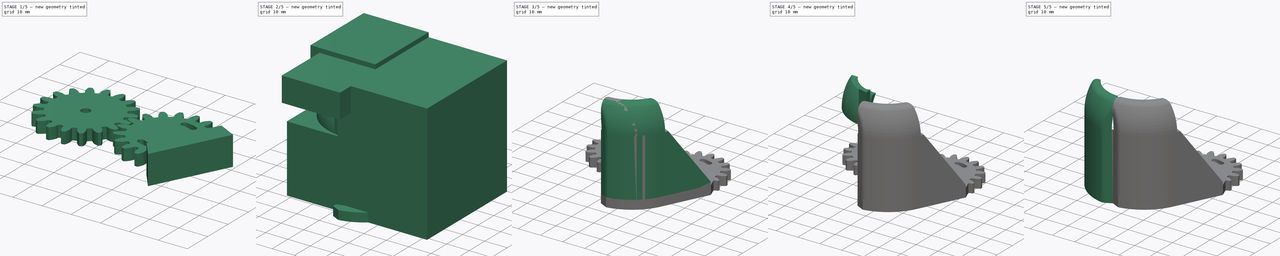
[diagram: build sequence overview — one tinted view per stage of 5, left to right]
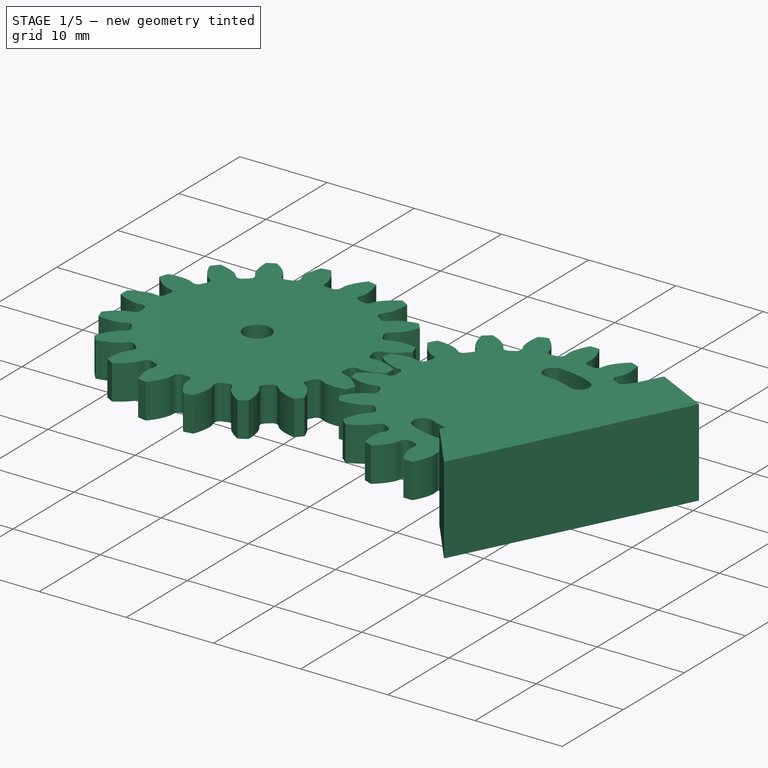
[diagram: stage 1 of 5 — iso view after this stage's code; geometry added in this stage tinted green]
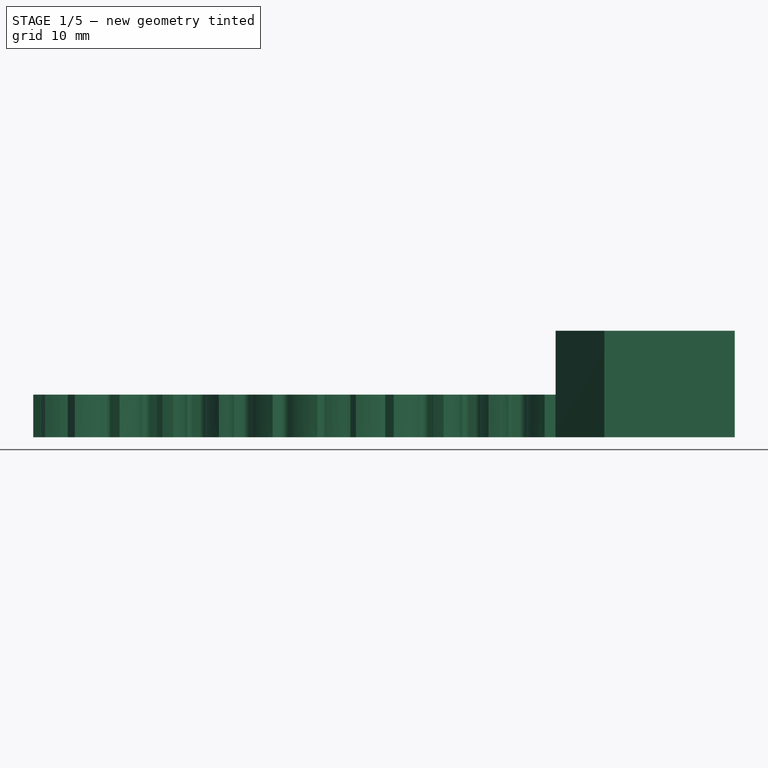
[diagram: stage 1 of 5 — front view after this stage's code; geometry added in this stage tinted green]
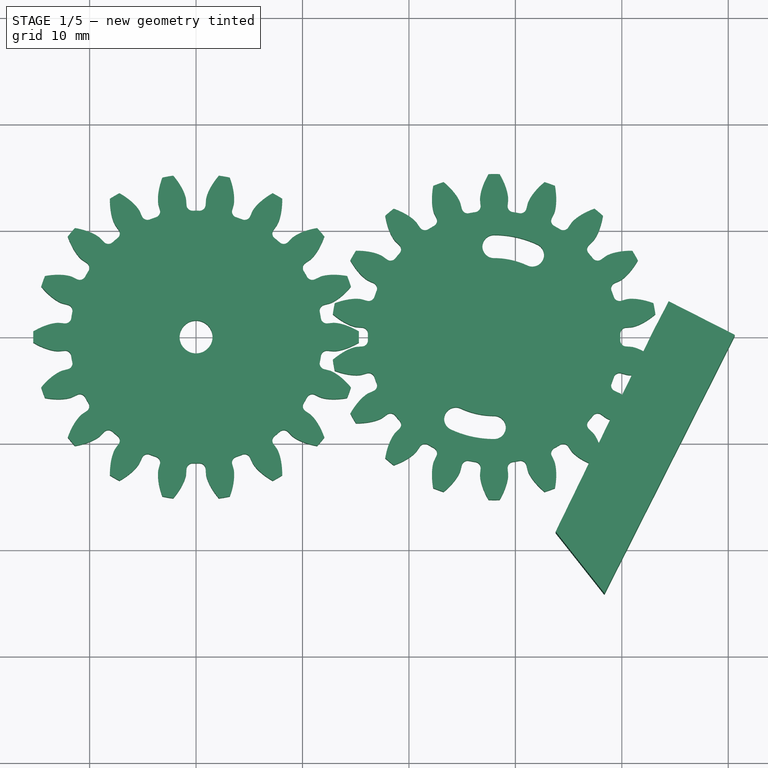
[diagram: stage 1 of 5 — top view after this stage's code; geometry added in this stage tinted green]
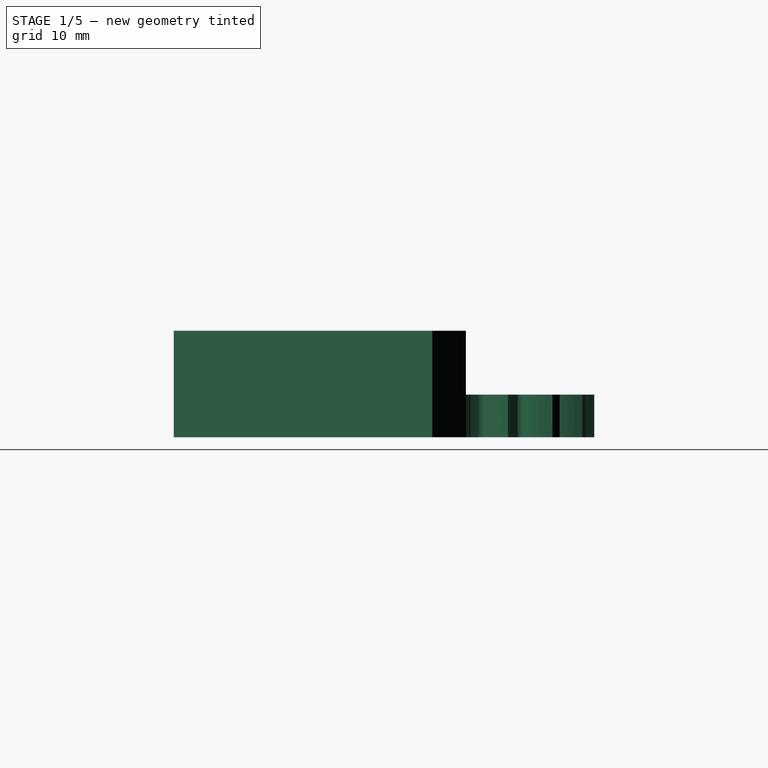
[diagram: stage 1 of 5 — right view after this stage's code; geometry added in this stage tinted green]
FCSTD DOCUMENT  (FreeCAD 0.16R6712 (Git))
Label: pinza_v2
License: All rights reserved
LicenseURL: http://en.wikipedia.org/wiki/All_rights_reserved
objects: Part::Cut×20, PartDesign::Pad×12, Sketcher::SketchObject×11, Part::Box×8, Part::Fillet×8, Part::Part2DObjectPython×4, Part::Sphere×4, Part::MultiFuse×4, Part::Cylinder×4, Part::Mirroring×3, PartDesign::Pocket×2
note: 94 computed .brp shape members not serialized (recipe doc carries the construction recipe); baked Part::Feature solids carry a one-line shape summary decoded from their .brp

FEATURE [PartDesign::Pad] Pad001
  Length = 4
  Length2 = 100
  Placement = pos=(28,0,0) rot=(0,0,1;0.174533rad)
  Sketch = -> InvoluteGear001
  Type = 0
FEATURE [Sketcher::SketchObject] Sketch005
  sketch-geometry (8):
    g0: GeomPoint [constr] X=14 Y=-28.775 Z=0
    g1: LineSegment [constr] StartX=14 StartY=-28.775 StartZ=0 EndX=14 EndY=-8.77499 EndZ=0
    g2: LineSegment [constr] StartX=0 StartY=0 StartZ=0 EndX=14 EndY=-28.775 EndZ=0
    g3: LineSegment StartX=-14.9703 StartY=0.483587 StartZ=0 EndX=-5.7828 EndY=-18.4 EndZ=0
    g4: LineSegment StartX=-14.9703 StartY=0.483587 StartZ=0 EndX=-16.4075 EndY=3.24482 EndZ=0
    g5: LineSegment StartX=-16.4075 StartY=3.24482 StartZ=0 EndX=-22.6139 EndY=0.087143 EndZ=0
    g6: LineSegment StartX=-22.6139 StartY=0.087143 StartZ=0 EndX=-10.3643 EndY=-24.1943 EndZ=0
    g7: LineSegment StartX=-10.3643 StartY=-24.1943 StartZ=0 EndX=-5.7828 EndY=-18.4 EndZ=0
  constraints (9):
    c: Coincident(g1,g0)
    c: Vertical(g1)
    c: Coincident(g2,g0)
    c: Coincident(g2,g-1)
    c: Distance(g2) = 32
    c: Coincident(g5,g4)
    c: Coincident(g7,g6)
    c: Coincident(g6,g5)
    c: Coincident(g3,g7)
FEATURE [PartDesign::Pad] Pad005
  Length = 10
  Length2 = 100
  Sketch = -> Sketch005
  Type = 0
FEATURE [Part::Mirroring] Part__Mirroring001  label="Pad005 (Mirror #2)"
  Base = (18,0,0)
  Normal = (1,0,0)
  Placement = pos=(-8,0,0) rot=(0,0,1;0rad)
  Source = -> Pad005
FEATURE [PartDesign::Pad] Pad002
  Length = 5
  Length2 = 100
  Placement = pos=(28,0,0) rot=(0,0,1;0rad)
  Sketch = -> Sketch001
  Type = 0
FEATURE [Part::Cut] Cut
  Base = -> Pad001
  Tool = -> Pad002
FEATURE [Part::Part2DObjectPython] InvoluteGear002  # Draft 2D object (typed FeaturePython)
  ExternalGear = true
  HighPrecision = true
  Modules = 1.53
  NumberOfTeeth = 18
  PressureAngle = 20
FEATURE [PartDesign::Pad] Pad009
  Length = 4
  Length2 = 100
  Sketch = -> InvoluteGear002
  Type = 0
FEATURE [Part::Cylinder] Cylinder002
  Angle = 360
  Height = 10
  Radius = 1.55
FEATURE [Part::Cut] Cut017
  Base = -> Pad009
  Tool = -> Cylinder002
FEATURE [Part::Part2DObjectPython] InvoluteGear003  # Draft 2D object (typed FeaturePython)
  ExternalGear = true
  HighPrecision = true
  Modules = 1.53
  NumberOfTeeth = 18
  Placement = pos=(28,0,0) rot=(0,0,1;0.174533rad)
  PressureAngle = 20
FEATURE [PartDesign::Pad] Pad010
  Length = 4
  Length2 = 100
  Placement = pos=(28,0,0) rot=(0,0,1;0.174533rad)
  Sketch = -> InvoluteGear003
  Type = 0
FEATURE [Sketcher::SketchObject] Sketch010
  Placement = pos=(28,0,0) rot=(0,0,1;0rad)
  sketch-geometry (26):
    g0: Circle [constr] CenterX=0 CenterY=0 CenterZ=0 NormalX=0 NormalY=0 NormalZ=1 Radius=8.5
    g1: GeomPoint [constr] X=0 Y=0 Z=0
    g2: GeomPoint [constr] X=0 Y=0 Z=0
    g3: LineSegment [constr] StartX=-4.05714 StartY=-8.70055 StartZ=0 EndX=4.05714 EndY=8.70055 EndZ=0
    g4: GeomPoint [constr] X=0 Y=0 Z=0
    g5: GeomPoint [constr] X=3.12738 Y=6.70668 Z=0
    g6: GeomPoint [constr] X=0 Y=7.4 Z=0
    g7: GeomPoint [constr] X=0 Y=9.6 Z=0
    g8: GeomPoint [constr] X=0 Y=8.5 Z=0
    g9: Circle [constr] CenterX=0 CenterY=0 CenterZ=0 NormalX=0 NormalY=0 NormalZ=1 Radius=9.6
    g10: Circle [constr] CenterX=0 CenterY=0 CenterZ=0 NormalX=0 NormalY=0 NormalZ=1 Radius=7.4
    g11: GeomPoint [constr] X=3.59226 Y=7.70362 Z=0
    g12: ArcOfCircle CenterX=0 CenterY=0 CenterZ=0 NormalX=0 NormalY=0 NormalZ=1 Radius=7.4 StartAngle=1.13446 EndAngle=1.5708
    g13: ArcOfCircle CenterX=0 CenterY=0 CenterZ=0 NormalX=0 NormalY=0 NormalZ=1 Radius=9.6 StartAngle=1.13446 EndAngle=1.5708
    g14: GeomPoint [constr] X=-3.12738 Y=-6.70668 Z=0
    g15: GeomPoint [constr] X=-3.59226 Y=-7.70362 Z=0
    g16: GeomPoint [constr] X=-4.05714 Y=-8.70055 Z=0
    g17: GeomPoint [constr] X=0 Y=-9.6 Z=0
    g18: GeomPoint [constr] X=0 Y=-8.5 Z=0
    g19: GeomPoint [constr] X=0 Y=-7.4 Z=0
    g20: ArcOfCircle CenterX=0 CenterY=0 CenterZ=0 NormalX=0 NormalY=0 NormalZ=1 Radius=7.4 StartAngle=4.27606 EndAngle=4.71239
    g21: ArcOfCircle CenterX=0 CenterY=0 CenterZ=0 NormalX=0 NormalY=0 NormalZ=1 Radius=9.6 StartAngle=4.27606 EndAngle=4.71239
    g22: ArcOfCircle CenterX=0 CenterY=8.5 CenterZ=0 NormalX=0 NormalY=0 NormalZ=1 Radius=1.1 StartAngle=1.5708 EndAngle=4.71239
    g23: ArcOfCircle CenterX=3.59226 CenterY=7.70362 CenterZ=0 NormalX=0 NormalY=0 NormalZ=1 Radius=1.1 StartAngle=4.27606 EndAngle=7.41765
    g24: ArcOfCircle CenterX=-3.59226 CenterY=-7.70362 CenterZ=0 NormalX=0 NormalY=0 NormalZ=1 Radius=1.1 StartAngle=1.13446 EndAngle=4.27606
    g25: ArcOfCircle CenterX=0 CenterY=-8.5 CenterZ=0 NormalX=0 NormalY=0 NormalZ=1 Radius=1.1 StartAngle=4.71239 EndAngle=7.85398
  constraints (54):
    c: Coincident(g0,g-1)
    c: Radius(g0) = 8.5
    c: Coincident(g1,g-1)
    c: Coincident(g2,g-1)
    c: PointOnObject(g4,g3)
    c: Symmetric(g3,g3,g4)
    c: Coincident(g4,g-1)
    c: Angle(g3,g-2) = 0.436332
    c: PointOnObject(g6,g-2)
    c: PointOnObject(g5,g3)
    c: PointOnObject(g7,g-2)
    c: PointOnObject(g8,g0)
    c: PointOnObject(g8,g-2)
    c: Coincident(g9,g-1)
    c: Radius(g9) = 9.6
    c: Coincident(g10,g-1)
    c: Radius(g10) = 7.4
    c: PointOnObject(g11,g0)
    c: PointOnObject(g11,g3)
    c: Coincident(g12,g-1)
    c: Coincident(g12,g6)
    c: Coincident(g12,g5)
    c: Coincident(g13,g-1)
    c: Coincident(g13,g7)
    c: Coincident(g13,g3)
    c: PointOnObject(g14,g10)
    c: PointOnObject(g15,g0)
    c: PointOnObject(g16,g9)
    c: PointOnObject(g17,g9)
    c: PointOnObject(g18,g0)
    c: PointOnObject(g14,g3)
    c: PointOnObject(g15,g3)
    c: PointOnObject(g16,g3)
    c: PointOnObject(g19,g-2)
    c: PointOnObject(g18,g-2)
    c: PointOnObject(g17,g-2)
    c: Coincident(g20,g-1)
    c: Coincident(g20,g14)
    c: Coincident(g20,g19)
    c: Coincident(g21,g-1)
    c: Coincident(g21,g3)
    c: Coincident(g21,g17)
    c: Coincident(g22,g8)
    c: Coincident(g22,g6)
    c: Coincident(g22,g7)
    c: Coincident(g23,g11)
    c: Coincident(g23,g3)
    c: Coincident(g23,g5)
    c: Coincident(g24,g15)
    c: Coincident(g24,g3)
    c: Coincident(g24,g14)
    c: Coincident(g25,g18)
    c: Coincident(g25,g17)
    c: Coincident(g25,g19)
FEATURE [PartDesign::Pad] Pad011
  Length = 5
  Length2 = 100
  Placement = pos=(28,0,0) rot=(0,0,1;0rad)
  Sketch = -> Sketch010
  Type = 0
FEATURE [Part::Cut] Cut018
  Base = -> Pad010
  Tool = -> Pad011
FEATURE [Part::Cylinder] Cylinder003
  Angle = 360
  Height = 10
  Placement = pos=(28,0,0) rot=(0,0,1;0rad)
  Radius = 2.5
FEATURE [Part::Cut] Cut019
  Base = -> Cut018
  Tool = -> Cylinder003
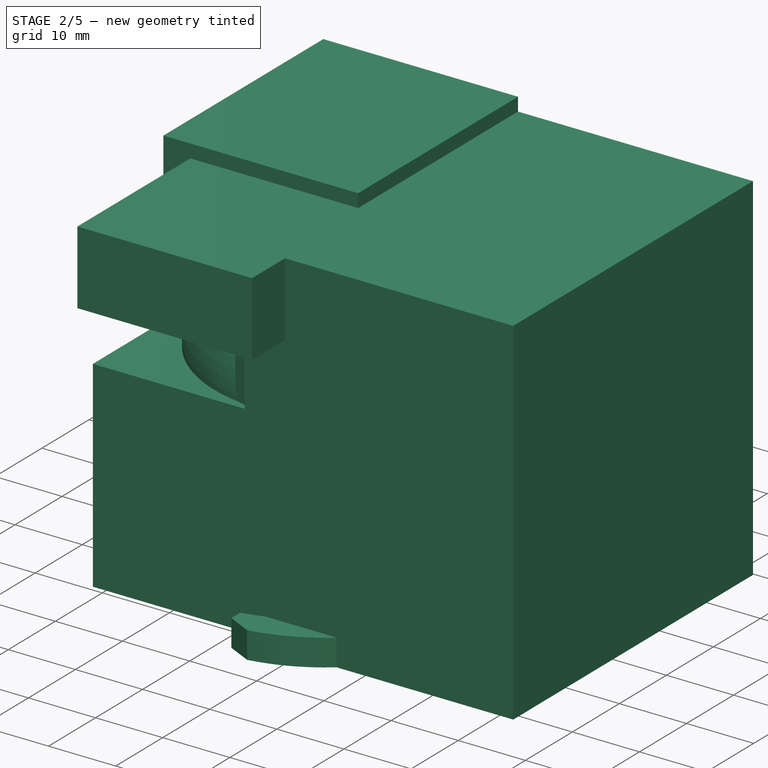
[diagram: stage 2 of 5 — iso view after this stage's code; geometry added in this stage tinted green]
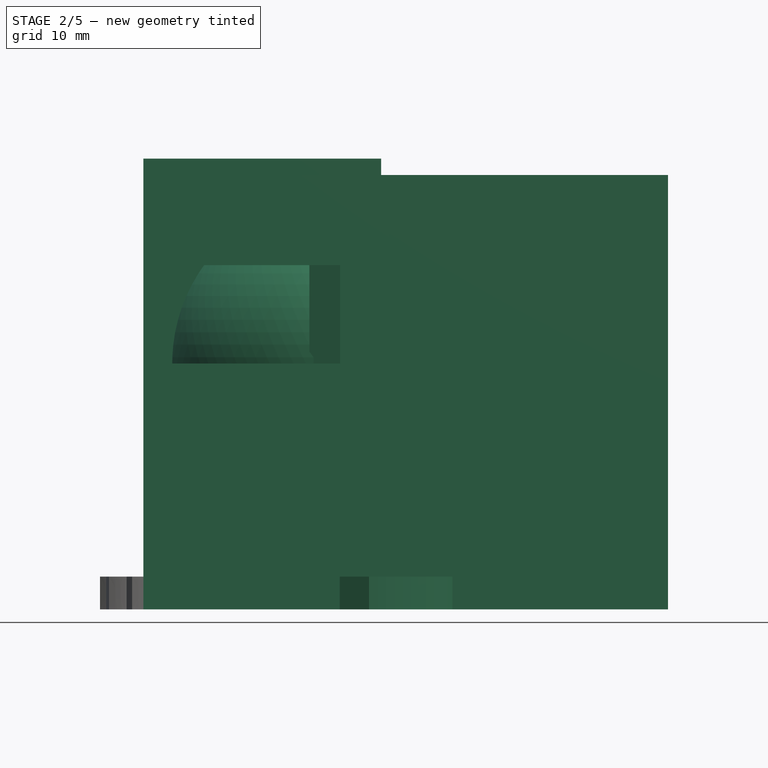
[diagram: stage 2 of 5 — front view after this stage's code; geometry added in this stage tinted green]
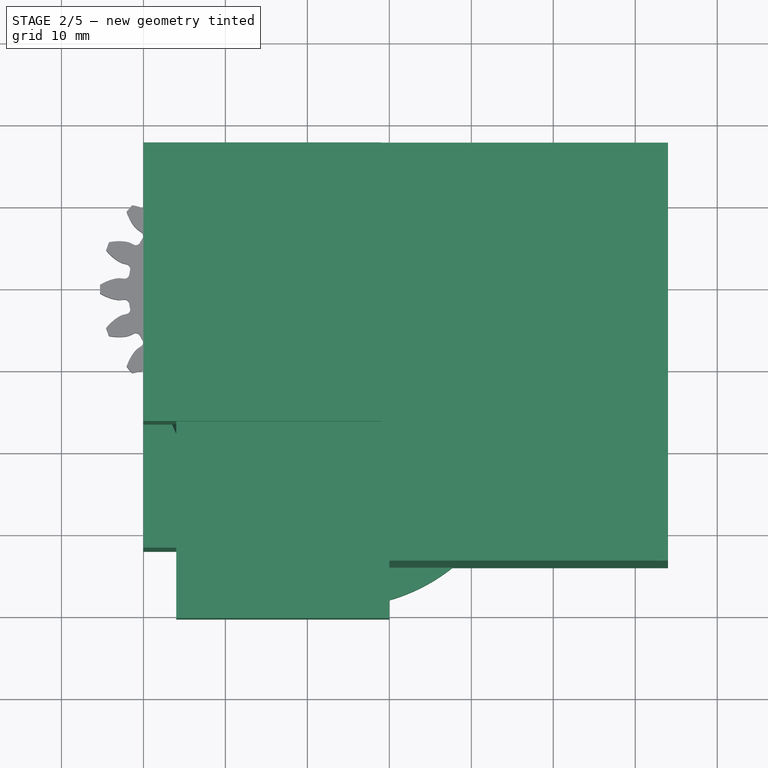
[diagram: stage 2 of 5 — top view after this stage's code; geometry added in this stage tinted green]
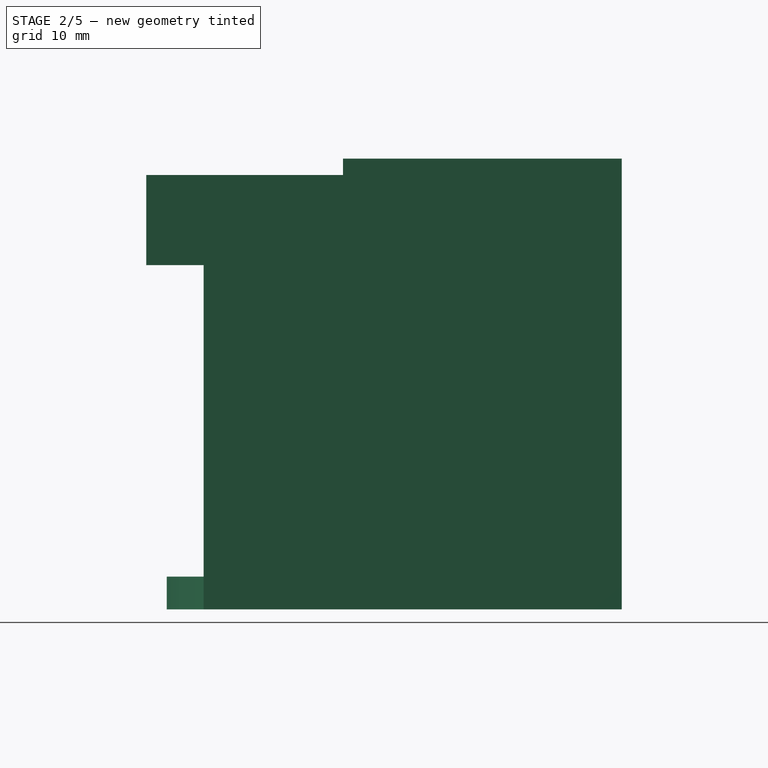
[diagram: stage 2 of 5 — right view after this stage's code; geometry added in this stage tinted green]
FEATURE [Part::Sphere] Sphere
  Angle1 = -90
  Angle2 = 90
  Angle3 = 360
  Placement = pos=(14,-9,30) rot=(0,0,1;0rad)
  Radius = 20
FEATURE [Part::Sphere] Sphere001
  Angle1 = -90
  Angle2 = 90
  Angle3 = 360
  Placement = pos=(14,-9,30) rot=(0,0,1;0rad)
  Radius = 22
FEATURE [Part::Box] Box  label="Cube"
  Height = 30
  Length = 48
  Placement = pos=(-10,-32,0) rot=(0,0,1;0rad)
  Width = 45
FEATURE [Part::Cut] Cut001
  Base = -> Sphere001
  Tool = -> Sphere
FEATURE [Part::Box] Box001  label="Cube001"
  Height = 53
  Length = 40
  Placement = pos=(14,-34,0) rot=(0,0,1;0rad)
  Width = 51
FEATURE [Part::Box] Box002  label="Cube002"
  Height = 55
  Length = 29
  Placement = pos=(-10,-17,0) rot=(0,0,1;0rad)
  Width = 34
FEATURE [Part::Box] Box003  label="Cube003"
  Height = 11
  Length = 26
  Placement = pos=(-6,-41,42) rot=(0,0,1;0rad)
  Width = 28
FEATURE [Sketcher::SketchObject] Sketch003
  sketch-geometry (3):
    g0: LineSegment StartX=14.1428 StartY=-28.707 StartZ=0 EndX=10.2448 EndY=-30.6075 EndZ=0
    g1: LineSegment StartX=10.2448 StartY=-30.6075 StartZ=0 EndX=14.3921 EndY=-31.6872 EndZ=0
    g2: LineSegment StartX=14.1428 StartY=-28.707 StartZ=0 EndX=14.3921 EndY=-31.6872 EndZ=0
  constraints (3):
    c: Coincident(g1,g0)
    c: Coincident(g2,g0)
    c: Coincident(g2,g1)
FEATURE [PartDesign::Pad] Pad004
  Length = 45
  Length2 = 100
  Sketch = -> Sketch003
  Type = 0
FEATURE [Part::Cylinder] Cylinder
  Angle = 360
  Height = 10
  Placement = pos=(28,0,0) rot=(0,0,1;0rad)
  Radius = 2.5
FEATURE [Sketcher::SketchObject] Sketch009
  Placement = pos=(0,-8,0) rot=(0,0,1;0rad)
  sketch-geometry (12):
    g0: GeomPoint [constr] X=14.0553 Y=-28.748 Z=0
    g1: LineSegment [constr] StartX=14.0553 StartY=-28.748 StartZ=0 EndX=14.0553 EndY=-8.77499 EndZ=0
    g2: LineSegment [constr] StartX=0 StartY=0 StartZ=0 EndX=14.0553 EndY=-28.748 EndZ=0
    g3: LineSegment StartX=14.0553 StartY=-28.748 StartZ=0 EndX=10.4739 EndY=-30.499 EndZ=0
    g4: ArcOfCircle CenterX=14.0019 CenterY=-8.78376 CenterZ=0 NormalX=0 NormalY=0 NormalZ=1 Radius=22 StartAngle=3.59431 EndAngle=4.55133
    g5: LineSegment StartX=-14.9703 StartY=0.483587 StartZ=0 EndX=-5.78192 EndY=-18.4067 EndZ=0
    g6: LineSegment StartX=-14.9703 StartY=0.483587 StartZ=0 EndX=-12.3169 EndY=7.12989 EndZ=0
    g7: ArcOfCircle CenterX=17.6151 CenterY=-7.09759 CenterZ=0 NormalX=0 NormalY=0 NormalZ=1 Radius=20.0486 StartAngle=3.58812 EndAngle=4.53388
    g8: LineSegment StartX=-12.3169 StartY=7.12989 StartZ=0 EndX=-9.58116 EndY=3.03597 EndZ=0
    g9: LineSegment StartX=14.0553 StartY=-28.748 StartZ=0 EndX=14.0553 EndY=-26.8276 EndZ=0
    g10: LineSegment StartX=-9.58116 StartY=3.03597 StartZ=0 EndX=-1.07621 EndY=-1.65107 EndZ=0
    g11: LineSegment StartX=-1.07621 StartY=-1.65107 StartZ=0 EndX=-0.467703 EndY=-15.7553 EndZ=0
  constraints (21):
    c: Coincident(g1,g0)
    c: Vertical(g1)
    c: Coincident(g2,g0)
    c: Coincident(g2,g-1)
    c: Distance(g2) = 32
    c: Coincident(g3,g0)
    c: Perpendicular(g3,g2)
    c: Radius(g4) = 22
    c: PointOnObject(g5,g4)
    c: Coincident(g6,g5)
    c: Coincident(g4,g5)
    c: Coincident(g3,g4)
    c: Coincident(g4,g5)
    c: Tangent(g5,g4)
    c: PointOnObject(g9,g7)
    c: Vertical(g9)
    c: PointOnObject(g7,g1)
    c: Coincident(g7,g9)
    c: Coincident(g0,g9)
    c: Coincident(g10,g11)
    c: Coincident(g6,g8)
FEATURE [PartDesign::Pad] Pad008
  Length = 4
  Length2 = 100
  Placement = pos=(0,-8,0) rot=(0,0,1;0rad)
  Sketch = -> Sketch009
  Type = 0
FEATURE [Part::Mirroring] Part__Mirroring002  label="Pad008 (Mirror #3)"
  Base = (14,0,0)
  Normal = (1,0,0)
  Source = -> Pad008
FEATURE [Part::Cut] Cut008
  Base = -> Cut
  Tool = -> Part__Mirroring001
FEATURE [Part::Cut] Cut009
  Base = -> Cut008
  Tool = -> Cylinder
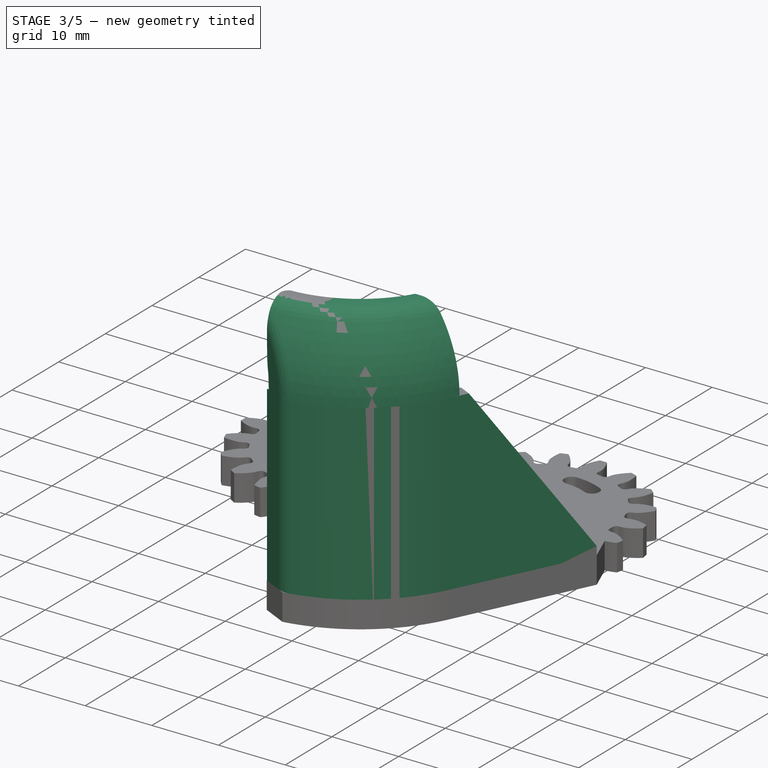
[diagram: stage 3 of 5 — iso view after this stage's code; geometry added in this stage tinted green]
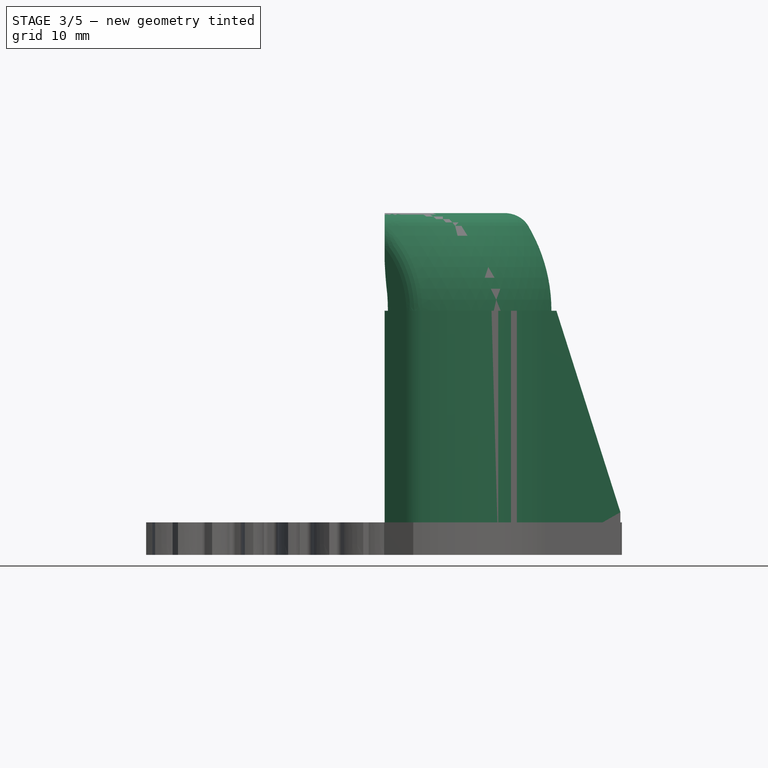
[diagram: stage 3 of 5 — front view after this stage's code; geometry added in this stage tinted green]
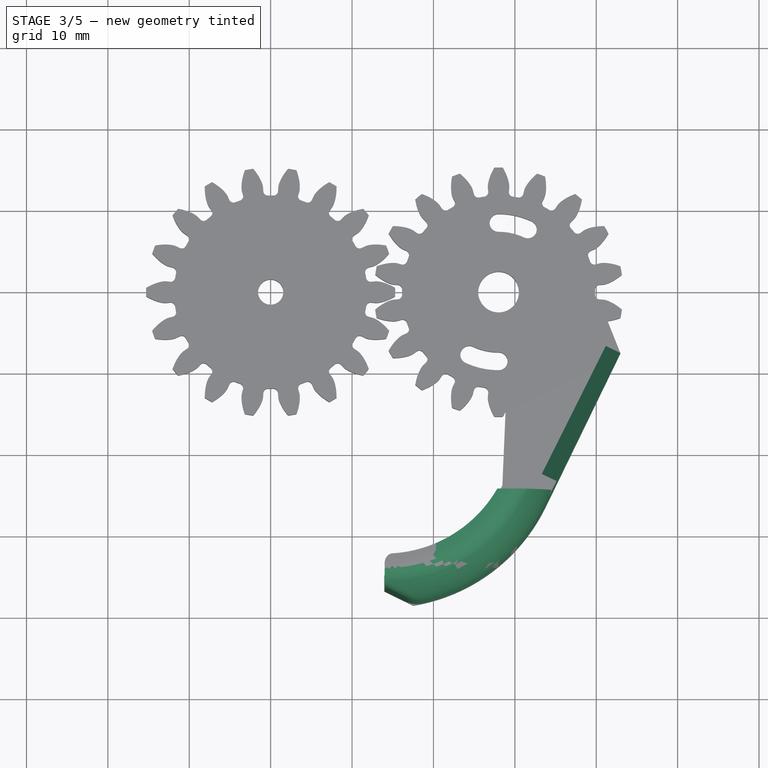
[diagram: stage 3 of 5 — top view after this stage's code; geometry added in this stage tinted green]
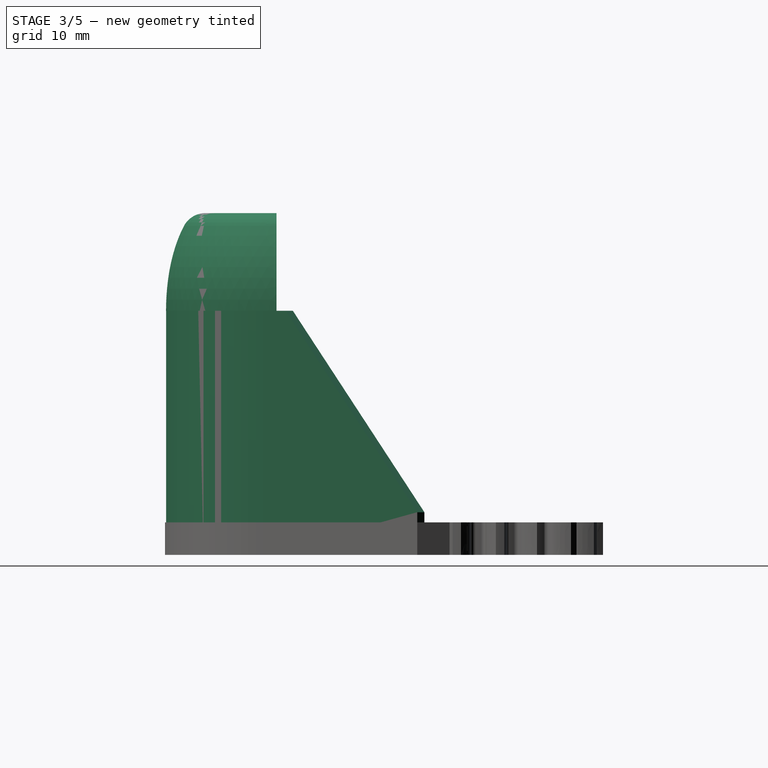
[diagram: stage 3 of 5 — right view after this stage's code; geometry added in this stage tinted green]
FEATURE [Sketcher::SketchObject] Sketch002
  sketch-geometry (9):
    g0: ArcOfCircle CenterX=14 CenterY=-8.77499 CenterZ=0 NormalX=0 NormalY=0 NormalZ=1 Radius=20 StartAngle=3.59441 EndAngle=4.71239
    g1: GeomPoint [constr] X=14 Y=-28.775 Z=0
    g2: LineSegment [constr] StartX=14 StartY=-28.775 StartZ=0 EndX=14 EndY=-8.77499 EndZ=0
    g3: LineSegment [constr] StartX=0 StartY=0 StartZ=0 EndX=14 EndY=-28.775 EndZ=0
    g4: LineSegment StartX=-13.1719 StartY=1.35858 StartZ=0 EndX=-3.98436 EndY=-17.525 EndZ=0
    g5: LineSegment StartX=14 StartY=-28.775 StartZ=0 EndX=10.4739 EndY=-30.4906 EndZ=0
    g6: ArcOfCircle CenterX=14 CenterY=-8.77499 CenterZ=0 NormalX=0 NormalY=0 NormalZ=1 Radius=22 StartAngle=3.59441 EndAngle=4.55142
    g7: LineSegment StartX=-14.9703 StartY=0.483577 StartZ=0 EndX=-5.7828 EndY=-18.4 EndZ=0
    g8: LineSegment StartX=-14.9703 StartY=0.483577 StartZ=0 EndX=-13.1719 EndY=1.35858 EndZ=0
  constraints (28):
    c: Radius(g0) = 20
    c: DistanceX(g-1,g0) = 14
    c: Coincident(g2,g1)
    c: Coincident(g2,g0)
    c: Vertical(g2)
    c: Coincident(g3,g1)
    c: Coincident(g3,g-1)
    c: Distance(g3) = 32
    c: Parallel(g4,g3)
    c: Coincident(g5,g1)
    c: Perpendicular(g5,g3)
    c: Coincident(g6,g0)
    c: Radius(g6) = 22
    c: Parallel(g7,g4)
    c: PointOnObject(g7,g6)
    c: Coincident(g8,g7)
    c: Coincident(g8,g4)
    c: Coincident(g6,g7)
    c: Coincident(g5,g6)
    c: Coincident(g6,g7)
    c: Coincident(g0,g4)
    c: Coincident(g0,g5)
    c: Tangent(g4,g0)
    c: Tangent(g7,g6)
    c: Coincident(g0,g1)
    c: Coincident(g4,g0)
    c: Perpendicular(g4,g8)
    c: Distance(g4) = 21
FEATURE [PartDesign::Pad] Pad003
  Length = 30
  Length2 = 100
  Sketch = -> Sketch002
  Type = 0
FEATURE [Part::Cut] Cut002
  Base = -> Cut001
  Tool = -> Box
FEATURE [Part::Cut] Cut003
  Base = -> Cut002
  Tool = -> Box001
FEATURE [Part::Cut] Cut004
  Base = -> Cut003
  Placement = pos=(0,0.2,0) rot=(0,0,1;0rad)
  Tool = -> Box002
FEATURE [Part::Cut] Cut005
  Base = -> Cut004
  Tool = -> Box003
FEATURE [Part::Cut] Cut006
  Base = -> Cut005
  Tool = -> Pad004
FEATURE [Part::Fillet] Fillet
  Base = -> Pad003
  Edges = 1 edges r=3: [Edge5]
FEATURE [Part::Fillet] Fillet001
  Base = -> Cut006
  Edges = 1 edges r=3: [Edge2]
FEATURE [Part::Fillet] Fillet002
  Base = -> Fillet001
  Edges = 1 edges r=3: [Edge3]
FEATURE [Sketcher::SketchObject] Sketch004
  Placement = pos=(-10.1162,-4.92188,0) rot=(0.40452,0.64667,0.64667;2.3728rad)
  Support = -> Fillet [Face7]
  sketch-geometry (4):
    g0: LineSegment StartX=-11.2305 StartY=30.3368 StartZ=0 EndX=7.38888 EndY=4.69426 EndZ=0
    g1: LineSegment StartX=9.4577 StartY=5.56534 StartZ=0 EndX=7.38888 EndY=4.69426 EndZ=0
    g2: LineSegment StartX=9.4577 StartY=5.56534 StartZ=0 EndX=9.4577 EndY=32.8956 EndZ=0
    g3: LineSegment StartX=-11.2305 StartY=30.3368 StartZ=0 EndX=9.4577 EndY=32.8956 EndZ=0
  constraints (5):
    c: Coincident(g1,g0)
    c: Coincident(g2,g1)
    c: Vertical(g2)
    c: Coincident(g3,g0)
    c: Coincident(g3,g2)
FEATURE [PartDesign::Pocket] Pocket
  Length = 5
  Sketch = -> Sketch004
  Type = 0
FEATURE [Part::Fillet] Fillet003
  Base = -> Fillet002
  Edges = 1 edges r=1: [Edge20]
FEATURE [Part::MultiFuse] Fusion
  Shapes = -> [Pocket,Fillet003]
FEATURE [Part::Mirroring] Part__Mirroring  label="Fusion (Mirror #1)"
  Base = (18,0,0)
  Normal = (1,0,0)
  Placement = pos=(-8,-8,0) rot=(0,0,1;0rad)
  Source = -> Fusion
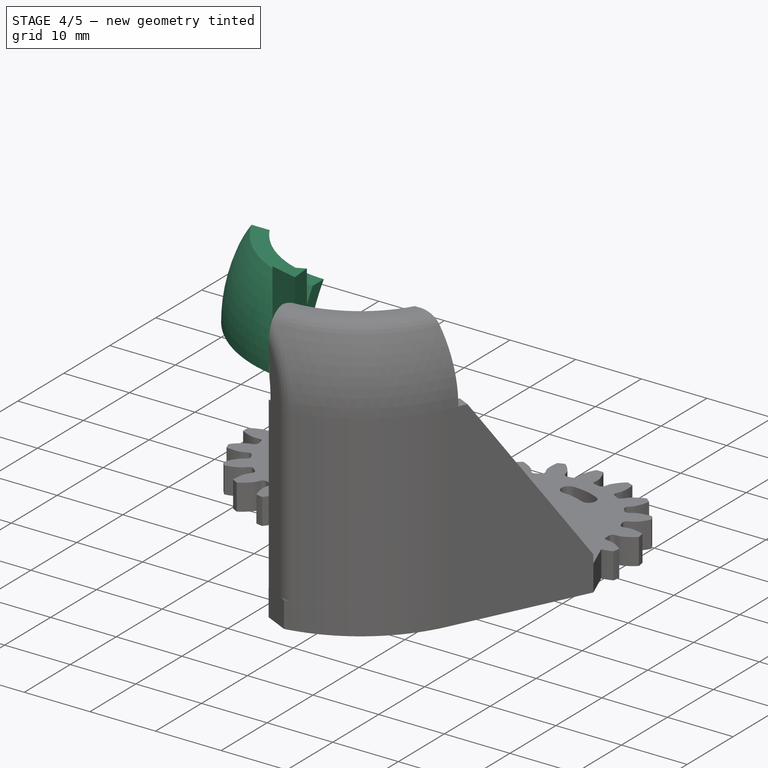
[diagram: stage 4 of 5 — iso view after this stage's code; geometry added in this stage tinted green]
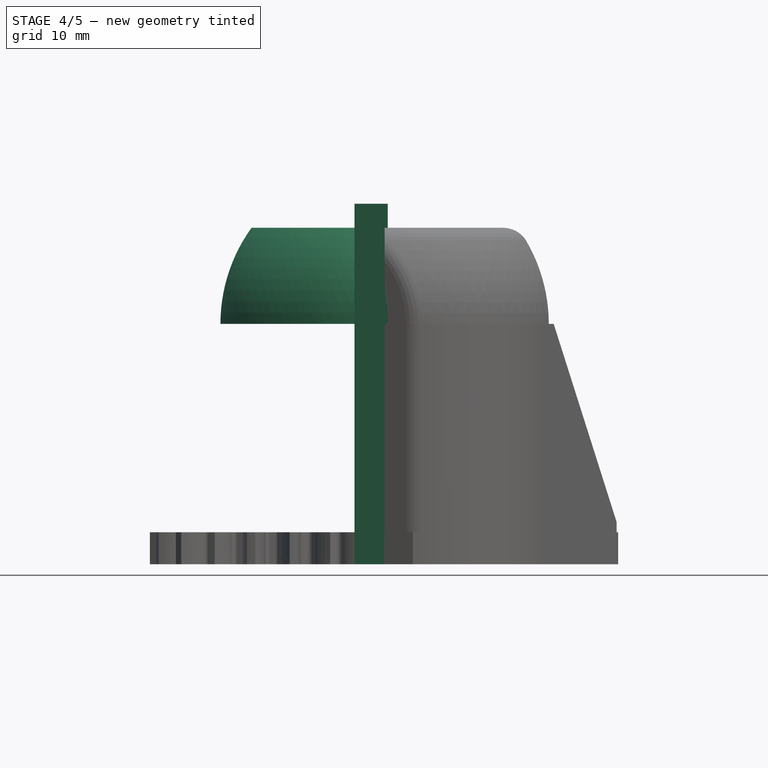
[diagram: stage 4 of 5 — front view after this stage's code; geometry added in this stage tinted green]
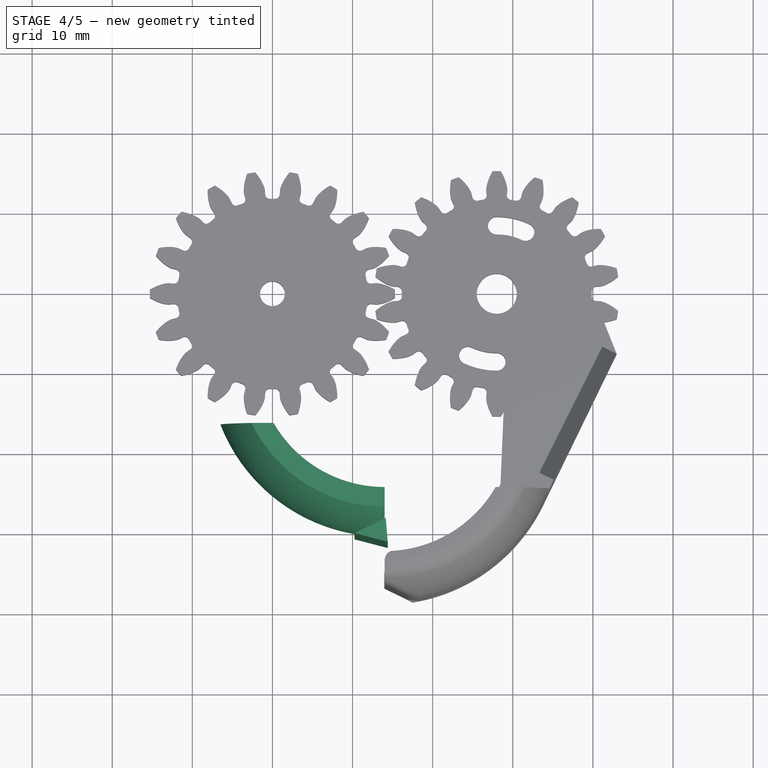
[diagram: stage 4 of 5 — top view after this stage's code; geometry added in this stage tinted green]
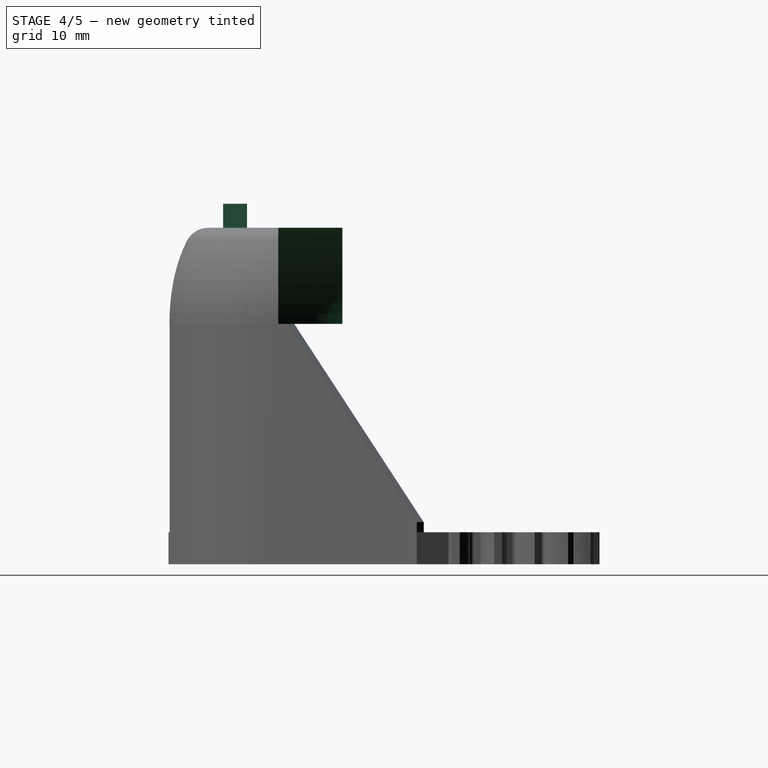
[diagram: stage 4 of 5 — right view after this stage's code; geometry added in this stage tinted green]
FEATURE [Part::Sphere] Sphere002
  Angle1 = -90
  Angle2 = 90
  Angle3 = 360
  Placement = pos=(14,-9,30) rot=(0,0,1;0rad)
  Radius = 20
FEATURE [Part::Sphere] Sphere003
  Angle1 = -90
  Angle2 = 90
  Angle3 = 360
  Placement = pos=(14,-9,30) rot=(0,0,1;0rad)
  Radius = 22
FEATURE [Part::Box] Box004  label="Cube004"
  Height = 30
  Length = 48
  Placement = pos=(-10,-32,0) rot=(0,0,1;0rad)
  Width = 45
FEATURE [Part::Cut] Cut011
  Base = -> Sphere003
  Tool = -> Sphere002
FEATURE [Part::Cut] Cut012
  Base = -> Cut011
  Tool = -> Box004
FEATURE [Part::Box] Box005  label="Cube005"
  Height = 53
  Length = 40
  Placement = pos=(14,-34,0) rot=(0,0,1;0rad)
  Width = 51
FEATURE [Part::Cut] Cut013
  Base = -> Cut012
  Tool = -> Box005
FEATURE [Part::Box] Box006  label="Cube006"
  Height = 55
  Length = 29
  Placement = pos=(-10,-17,0) rot=(0,0,1;0rad)
  Width = 34
FEATURE [Part::Cut] Cut014
  Base = -> Cut013
  Placement = pos=(0,0.2,0) rot=(0,0,1;0rad)
  Tool = -> Box006
FEATURE [Part::Box] Box007  label="Cube007"
  Height = 11
  Length = 26
  Placement = pos=(-6,-41,42) rot=(0,0,1;0rad)
  Width = 28
FEATURE [Part::Cut] Cut015
  Base = -> Cut014
  Tool = -> Box007
FEATURE [Sketcher::SketchObject] Sketch007
  sketch-geometry (3):
    g0: LineSegment StartX=14.1428 StartY=-28.707 StartZ=0 EndX=10.2448 EndY=-30.6075 EndZ=0
    g1: LineSegment StartX=10.2448 StartY=-30.6075 StartZ=0 EndX=14.3921 EndY=-31.6872 EndZ=0
    g2: LineSegment StartX=14.1428 StartY=-28.707 StartZ=0 EndX=14.3921 EndY=-31.6872 EndZ=0
  constraints (3):
    c: Coincident(g1,g0)
    c: Coincident(g2,g0)
    c: Coincident(g2,g1)
FEATURE [PartDesign::Pad] Pad007
  Length = 45
  Length2 = 100
  Sketch = -> Sketch007
  Type = 0
FEATURE [Part::MultiFuse] Fusion003
  Shapes = -> [Cut009,Part__Mirroring]
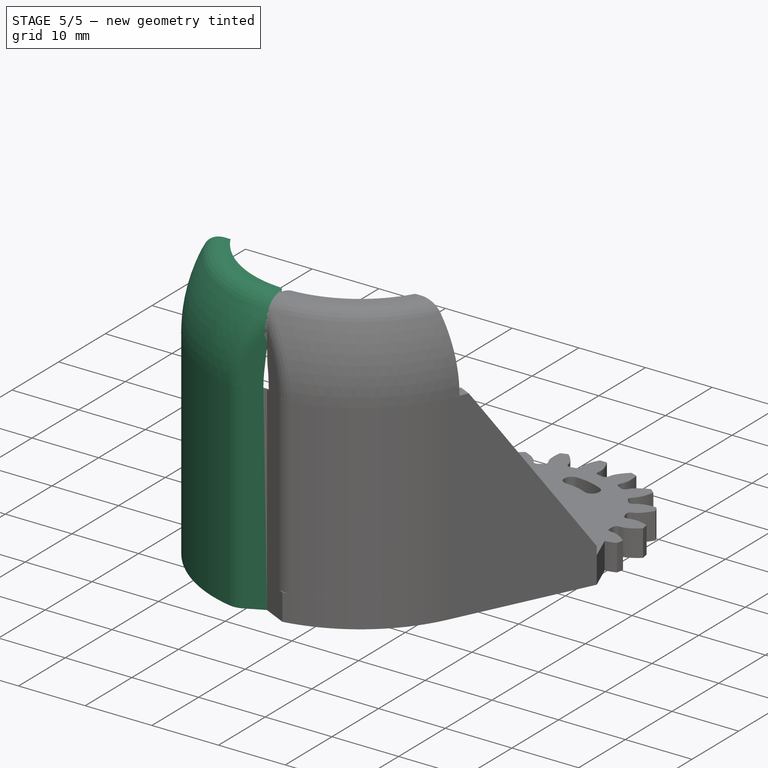
[diagram: stage 5 of 5 — iso view after this stage's code; geometry added in this stage tinted green]
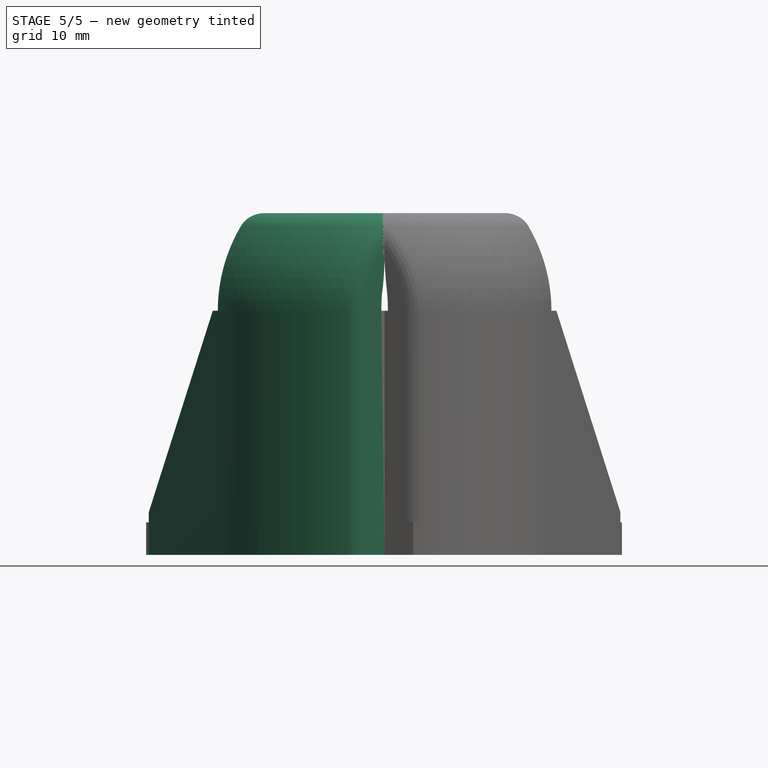
[diagram: stage 5 of 5 — front view after this stage's code; geometry added in this stage tinted green]
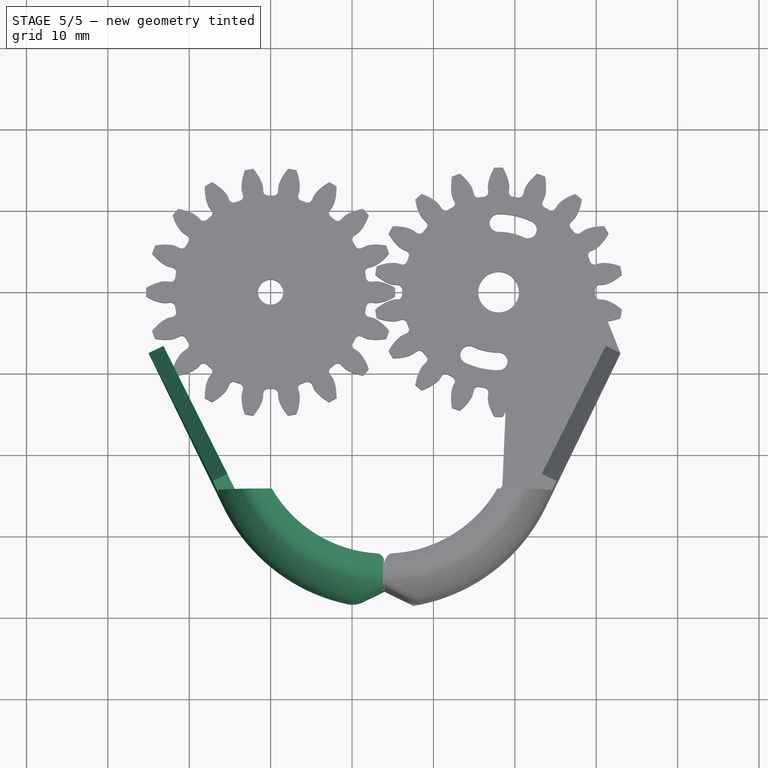
[diagram: stage 5 of 5 — top view after this stage's code; geometry added in this stage tinted green]
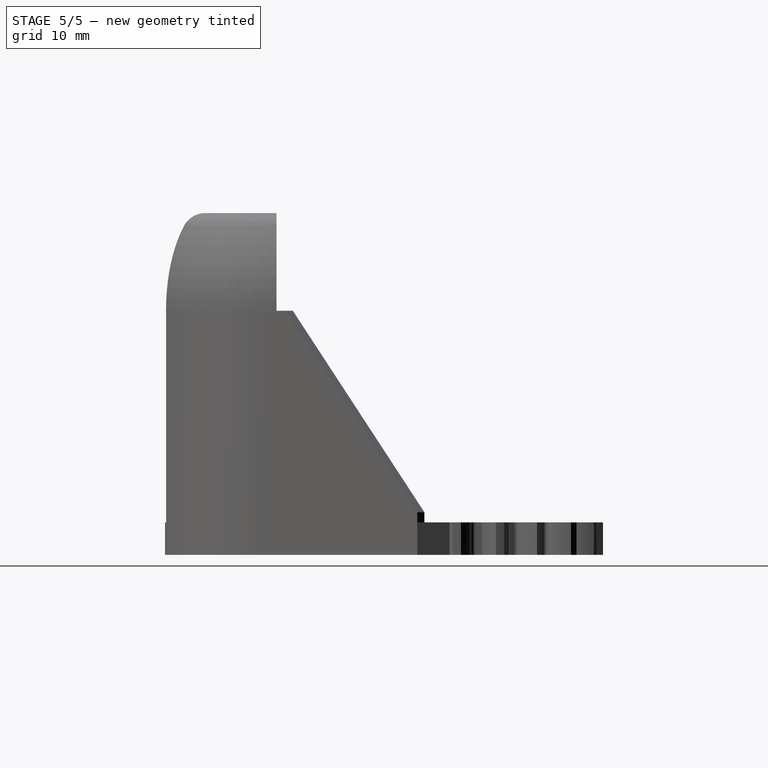
[diagram: stage 5 of 5 — right view after this stage's code; geometry added in this stage tinted green]
FEATURE [Sketcher::SketchObject] Sketch
  sketch-geometry (2):
    g0: Circle CenterX=0 CenterY=0 CenterZ=0 NormalX=0 NormalY=0 NormalZ=1 Radius=11.9
    g1: LineSegment [constr] StartX=0 StartY=0 StartZ=0 EndX=0 EndY=-35 EndZ=0
  constraints (5):
    c: Coincident(g0,g-1)
    c: Radius(g0) = 11.9
    c: Coincident(g1,g-1)
    c: Vertical(g1)
    c: DistanceY(g1,g1) = 35
FEATURE [Part::Part2DObjectPython] InvoluteGear  # Draft 2D object (typed FeaturePython)
  ExternalGear = true
  HighPrecision = true
  Modules = 1.53
  NumberOfTeeth = 18
  PressureAngle = 20
FEATURE [Part::Part2DObjectPython] InvoluteGear001  # Draft 2D object (typed FeaturePython)
  ExternalGear = true
  HighPrecision = true
  Modules = 1.53
  NumberOfTeeth = 18
  Placement = pos=(28,0,0) rot=(0,0,1;0.174533rad)
  PressureAngle = 20
FEATURE [Sketcher::SketchObject] Sketch001
  Placement = pos=(28,0,0) rot=(0,0,1;0rad)
  sketch-geometry (26):
    g0: Circle [constr] CenterX=0 CenterY=0 CenterZ=0 NormalX=0 NormalY=0 NormalZ=1 Radius=8.5
    g1: GeomPoint [constr] X=0 Y=0 Z=0
    g2: GeomPoint [constr] X=0 Y=0 Z=0
    g3: LineSegment [constr] StartX=-4.05714 StartY=-8.70055 StartZ=0 EndX=4.05714 EndY=8.70055 EndZ=0
    g4: GeomPoint [constr] X=0 Y=0 Z=0
    g5: GeomPoint [constr] X=3.12738 Y=6.70668 Z=0
    g6: GeomPoint [constr] X=0 Y=7.4 Z=0
    g7: GeomPoint [constr] X=0 Y=9.6 Z=0
    g8: GeomPoint [constr] X=0 Y=8.5 Z=0
    g9: Circle [constr] CenterX=0 CenterY=0 CenterZ=0 NormalX=0 NormalY=0 NormalZ=1 Radius=9.6
    g10: Circle [constr] CenterX=0 CenterY=0 CenterZ=0 NormalX=0 NormalY=0 NormalZ=1 Radius=7.4
    g11: GeomPoint [constr] X=3.59226 Y=7.70362 Z=0
    g12: ArcOfCircle CenterX=0 CenterY=0 CenterZ=0 NormalX=0 NormalY=0 NormalZ=1 Radius=7.4 StartAngle=1.13446 EndAngle=1.5708
    g13: ArcOfCircle CenterX=0 CenterY=0 CenterZ=0 NormalX=0 NormalY=0 NormalZ=1 Radius=9.6 StartAngle=1.13446 EndAngle=1.5708
    g14: GeomPoint [constr] X=-3.12738 Y=-6.70668 Z=0
    g15: GeomPoint [constr] X=-3.59226 Y=-7.70362 Z=0
    g16: GeomPoint [constr] X=-4.05714 Y=-8.70055 Z=0
    g17: GeomPoint [constr] X=0 Y=-9.6 Z=0
    g18: GeomPoint [constr] X=0 Y=-8.5 Z=0
    g19: GeomPoint [constr] X=0 Y=-7.4 Z=0
    g20: ArcOfCircle CenterX=0 CenterY=0 CenterZ=0 NormalX=0 NormalY=0 NormalZ=1 Radius=7.4 StartAngle=4.27606 EndAngle=4.71239
    g21: ArcOfCircle CenterX=0 CenterY=0 CenterZ=0 NormalX=0 NormalY=0 NormalZ=1 Radius=9.6 StartAngle=4.27606 EndAngle=4.71239
    g22: ArcOfCircle CenterX=0 CenterY=8.5 CenterZ=0 NormalX=0 NormalY=0 NormalZ=1 Radius=1.1 StartAngle=1.5708 EndAngle=4.71239
    g23: ArcOfCircle CenterX=3.59226 CenterY=7.70362 CenterZ=0 NormalX=0 NormalY=0 NormalZ=1 Radius=1.1 StartAngle=4.27606 EndAngle=7.41765
    g24: ArcOfCircle CenterX=-3.59226 CenterY=-7.70362 CenterZ=0 NormalX=0 NormalY=0 NormalZ=1 Radius=1.1 StartAngle=1.13446 EndAngle=4.27606
    g25: ArcOfCircle CenterX=0 CenterY=-8.5 CenterZ=0 NormalX=0 NormalY=0 NormalZ=1 Radius=1.1 StartAngle=4.71239 EndAngle=7.85398
  constraints (54):
    c: Coincident(g0,g-1)
    c: Radius(g0) = 8.5
    c: Coincident(g1,g-1)
    c: Coincident(g2,g-1)
    c: PointOnObject(g4,g3)
    c: Symmetric(g3,g3,g4)
    c: Coincident(g4,g-1)
    c: Angle(g3,g-2) = 0.436332
    c: PointOnObject(g6,g-2)
    c: PointOnObject(g5,g3)
    c: PointOnObject(g7,g-2)
    c: PointOnObject(g8,g0)
    c: PointOnObject(g8,g-2)
    c: Coincident(g9,g-1)
    c: Radius(g9) = 9.6
    c: Coincident(g10,g-1)
    c: Radius(g10) = 7.4
    c: PointOnObject(g11,g0)
    c: PointOnObject(g11,g3)
    c: Coincident(g12,g-1)
    c: Coincident(g12,g6)
    c: Coincident(g12,g5)
    c: Coincident(g13,g-1)
    c: Coincident(g13,g7)
    c: Coincident(g13,g3)
    c: PointOnObject(g14,g10)
    c: PointOnObject(g15,g0)
    c: PointOnObject(g16,g9)
    c: PointOnObject(g17,g9)
    c: PointOnObject(g18,g0)
    c: PointOnObject(g14,g3)
    c: PointOnObject(g15,g3)
    c: PointOnObject(g16,g3)
    c: PointOnObject(g19,g-2)
    c: PointOnObject(g18,g-2)
    c: PointOnObject(g17,g-2)
    c: Coincident(g20,g-1)
    c: Coincident(g20,g14)
    c: Coincident(g20,g19)
    c: Coincident(g21,g-1)
    c: Coincident(g21,g3)
    c: Coincident(g21,g17)
    c: Coincident(g22,g8)
    c: Coincident(g22,g6)
    c: Coincident(g22,g7)
    c: Coincident(g23,g11)
    c: Coincident(g23,g3)
    c: Coincident(g23,g5)
    c: Coincident(g24,g15)
    c: Coincident(g24,g3)
    c: Coincident(g24,g14)
    c: Coincident(g25,g18)
    c: Coincident(g25,g17)
    c: Coincident(g25,g19)
FEATURE [PartDesign::Pad] Pad
  Length = 4
  Length2 = 100
  Sketch = -> InvoluteGear
  Type = 0
FEATURE [Part::Cut] Cut007
  Base = -> Pad
  Tool = -> Pad005
FEATURE [Part::Cylinder] Cylinder001
  Angle = 360
  Height = 10
  Radius = 1.55
FEATURE [Part::Cut] Cut010
  Base = -> Cut007
  Tool = -> Cylinder001
FEATURE [Sketcher::SketchObject] Sketch006
  sketch-geometry (9):
    g0: ArcOfCircle CenterX=14 CenterY=-8.77499 CenterZ=0 NormalX=0 NormalY=0 NormalZ=1 Radius=20 StartAngle=3.59441 EndAngle=4.71239
    g1: GeomPoint [constr] X=14 Y=-28.775 Z=0
    g2: LineSegment [constr] StartX=14 StartY=-28.775 StartZ=0 EndX=14 EndY=-8.77499 EndZ=0
    g3: LineSegment [constr] StartX=0 StartY=0 StartZ=0 EndX=14 EndY=-28.775 EndZ=0
    g4: LineSegment StartX=-13.1719 StartY=1.35858 StartZ=0 EndX=-3.98436 EndY=-17.525 EndZ=0
    g5: LineSegment StartX=14 StartY=-28.775 StartZ=0 EndX=10.4739 EndY=-30.4906 EndZ=0
    g6: ArcOfCircle CenterX=14 CenterY=-8.77499 CenterZ=0 NormalX=0 NormalY=0 NormalZ=1 Radius=22 StartAngle=3.59441 EndAngle=4.55142
    g7: LineSegment StartX=-14.9703 StartY=0.483577 StartZ=0 EndX=-5.7828 EndY=-18.4 EndZ=0
    g8: LineSegment StartX=-14.9703 StartY=0.483577 StartZ=0 EndX=-13.1719 EndY=1.35858 EndZ=0
  constraints (28):
    c: Radius(g0) = 20
    c: DistanceX(g-1,g0) = 14
    c: Coincident(g2,g1)
    c: Coincident(g2,g0)
    c: Vertical(g2)
    c: Coincident(g3,g1)
    c: Coincident(g3,g-1)
    c: Distance(g3) = 32
    c: Parallel(g4,g3)
    c: Coincident(g5,g1)
    c: Perpendicular(g5,g3)
    c: Coincident(g6,g0)
    c: Radius(g6) = 22
    c: Parallel(g7,g4)
    c: PointOnObject(g7,g6)
    c: Coincident(g8,g7)
    c: Coincident(g8,g4)
    c: Coincident(g6,g7)
    c: Coincident(g5,g6)
    c: Coincident(g6,g7)
    c: Coincident(g0,g4)
    c: Coincident(g0,g5)
    c: Tangent(g4,g0)
    c: Tangent(g7,g6)
    c: Coincident(g0,g1)
    c: Coincident(g4,g0)
    c: Perpendicular(g4,g8)
    c: Distance(g4) = 21
FEATURE [PartDesign::Pad] Pad006
  Length = 30
  Length2 = 100
  Sketch = -> Sketch006
  Type = 0
FEATURE [Part::Cut] Cut016
  Base = -> Cut015
  Tool = -> Pad007
FEATURE [Part::Fillet] Fillet004
  Base = -> Pad006
  Edges = 1 edges r=3: [Edge5]
FEATURE [Part::Fillet] Fillet005
  Base = -> Cut016
  Edges = 1 edges r=3: [Edge2]
FEATURE [Part::Fillet] Fillet006
  Base = -> Fillet005
  Edges = 1 edges r=3: [Edge3]
FEATURE [Sketcher::SketchObject] Sketch008
  Placement = pos=(-10.1162,-4.92188,0) rot=(0.40452,0.64667,0.64667;2.3728rad)
  Support = -> Fillet004 [Face7]
  sketch-geometry (4):
    g0: LineSegment StartX=-11.2305 StartY=30.3368 StartZ=0 EndX=7.38888 EndY=4.69426 EndZ=0
    g1: LineSegment StartX=9.4577 StartY=5.56534 StartZ=0 EndX=7.38888 EndY=4.69426 EndZ=0
    g2: LineSegment StartX=9.4577 StartY=5.56534 StartZ=0 EndX=9.4577 EndY=32.8956 EndZ=0
    g3: LineSegment StartX=-11.2305 StartY=30.3368 StartZ=0 EndX=9.4577 EndY=32.8956 EndZ=0
  constraints (5):
    c: Coincident(g1,g0)
    c: Coincident(g2,g1)
    c: Vertical(g2)
    c: Coincident(g3,g0)
    c: Coincident(g3,g2)
FEATURE [PartDesign::Pocket] Pocket001
  Length = 5
  Sketch = -> Sketch008
  Type = 0
FEATURE [Part::Fillet] Fillet007
  Base = -> Fillet006
  Edges = 1 edges r=1: [Edge20]
FEATURE [Part::MultiFuse] Fusion001
  Placement = pos=(0,-8,0) rot=(0,0,1;0rad)
  Shapes = -> [Pocket001,Fillet007]
FEATURE [Part::MultiFuse] Fusion002
  Shapes = -> [Cut010,Fusion001]
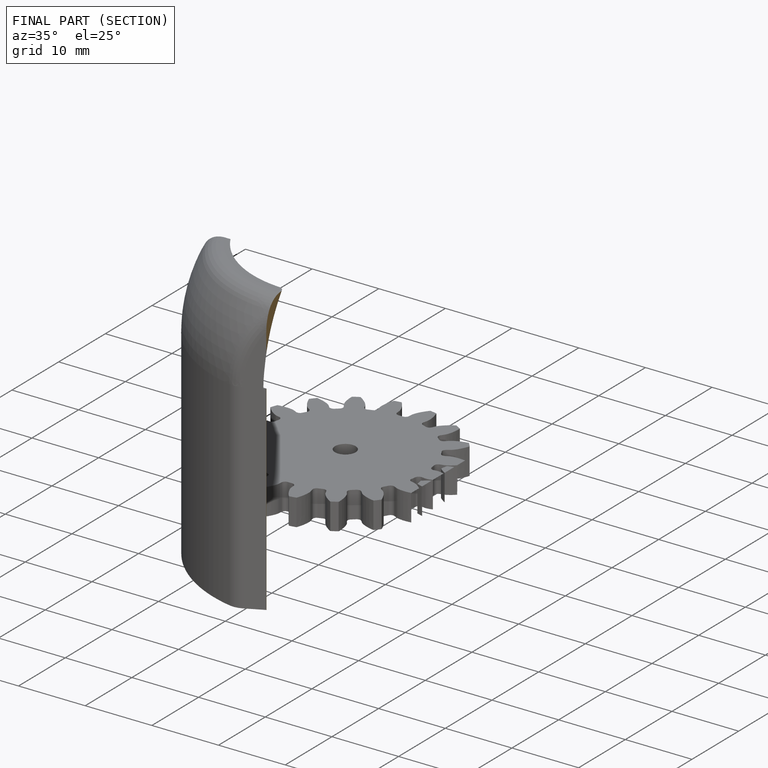
[diagram: finished part — half-section view (interior)]
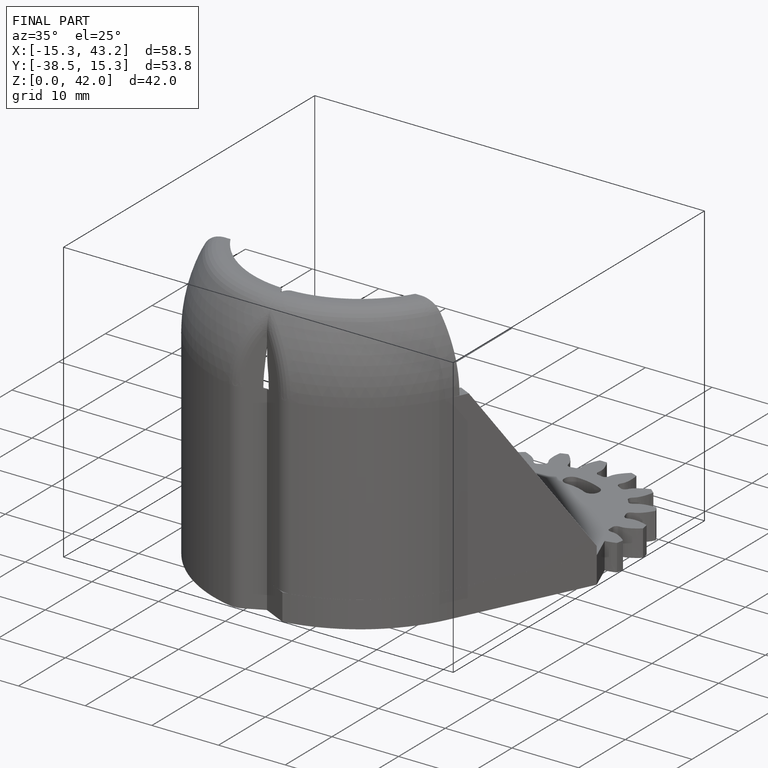
[diagram: finished part — iso view with bounding-box wireframe]
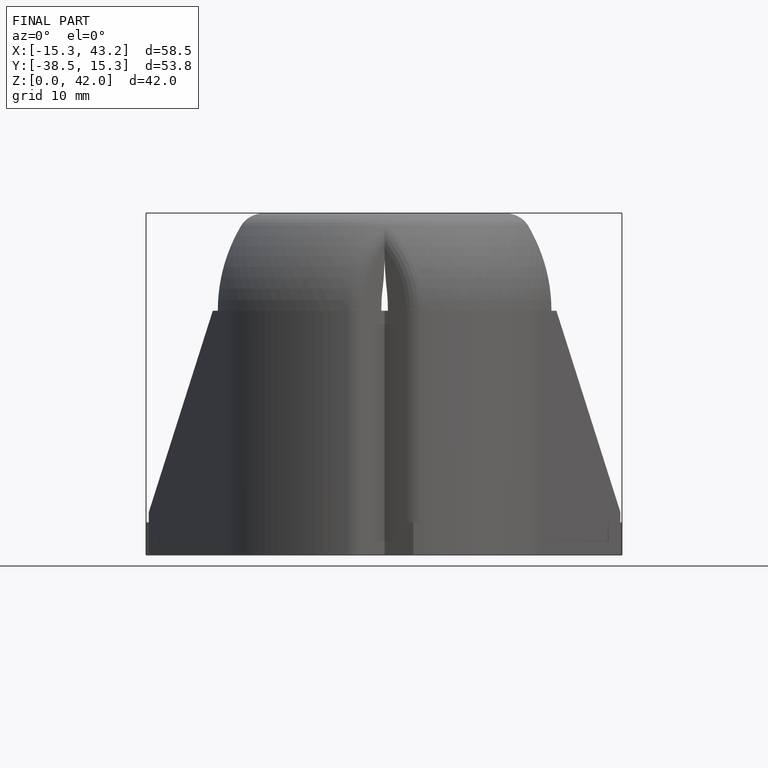
[diagram: finished part — front view with bounding-box wireframe]
